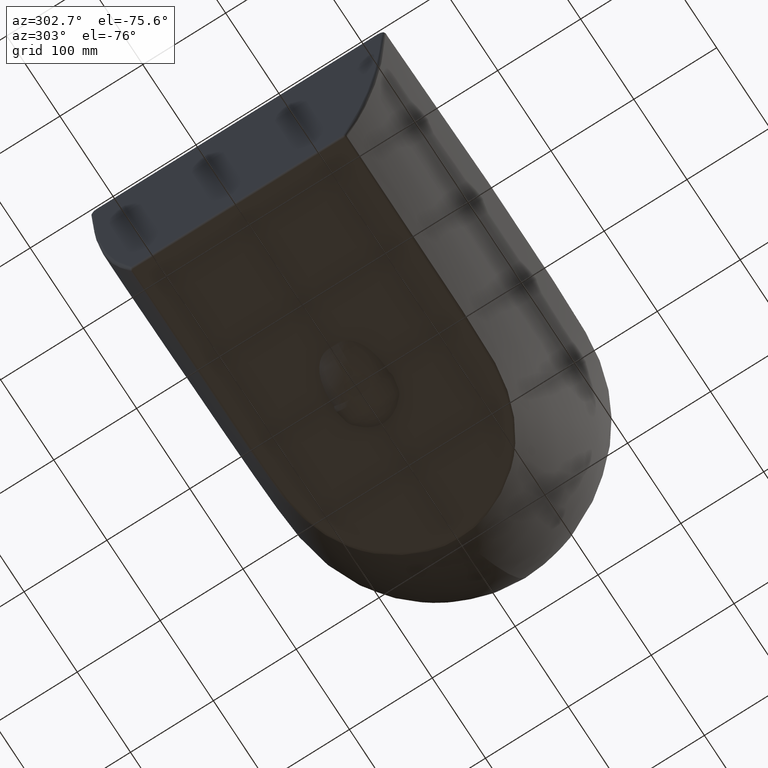
[diagram: clean part render]
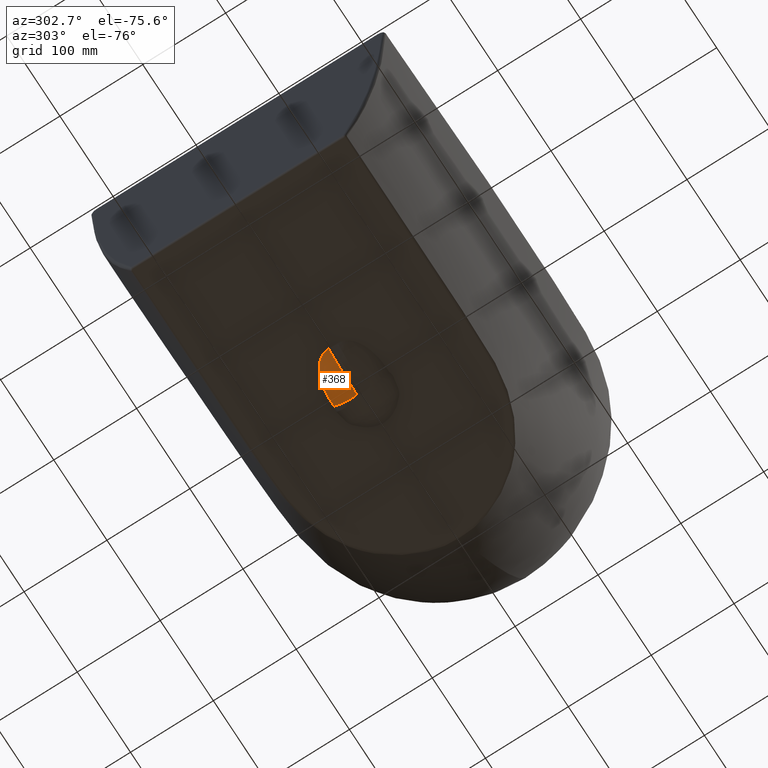
[diagram: same view with one face highlighted and labeled with its STEP entity id]
A machine part, auxiliary view. The second image highlights one B-rep face of the part: STEP entity #368.
In plain terms, the highlighted face is a freeform B-spline surface patch.
Its self-contained STEP definition (entity closure, byte-faithful):
#87=(
BOUNDED_SURFACE()
B_SPLINE_SURFACE(3,2,((#32137,#32138,#32139),(#32140,#32141,#32142),(#32143,
#32144,#32145),(#32146,#32147,#32148),(#32149,#32150,#32151),(#32152,#32153,
#32154),(#32155,#32156,#32157),(#32158,#32159,#32160),(#32161,#32162,#32163),
(#32164,#32165,#32166),(#32167,#32168,#32169),(#32170,#32171,#32172),(#32173,
#32174,#32175),(#32176,#32177,#32178),(#32179,#32180,#32181),(#32182,#32183,
#32184),(#32185,#32186,#32187),(#32188,#32189,#32190),(#32191,#32192,#32193),
(#32194,#32195,#32196),(#32197,#32198,#32199),(#32200,#32201,#32202),(#32203,
#32204,#32205),(#32206,#32207,#32208),(#32209,#32210,#32211),(#32212,#32213,
#32214),(#32215,#32216,#32217),(#32218,#32219,#32220),(#32221,#32222,#32223),
(#32224,#32225,#32226),(#32227,#32228,#32229),(#32230,#32231,#32232),(#32233,
#32234,#32235),(#32236,#32237,#32238),(#32239,#32240,#32241),(#32242,#32243,
#32244),(#32245,#32246,#32247),(#32248,#32249,#32250),(#32251,#32252,#32253),
(#32254,#32255,#32256),(#32257,#32258,#32259),(#32260,#32261,#32262),(#32263,
#32264,#32265),(#32266,#32267,#32268),(#32269,#32270,#32271),(#32272,#32273,
#32274),(#32275,#32276,#32277),(#32278,#32279,#32280),(#32281,#32282,#32283),
(#32284,#32285,#32286),(#32287,#32288,#32289),(#32290,#32291,#32292),(#32293,
#32294,#32295),(#32296,#32297,#32298),(#32299,#32300,#32301),(#32302,#32303,
#32304),(#32305,#32306,#32307),(#32308,#32309,#32310)),.UNSPECIFIED.,.F.,
 .F.,.F.)
B_SPLINE_SURFACE_WITH_KNOTS((4,2,2,2,2,2,2,2,2,2,2,2,2,2,2,2,2,2,2,2,2,
2,2,2,2,2,2,2,4),(3,3),(0.,0.5,0.53125,0.5322265625,0.53271484375,0.533203125,
0.53515625,0.5390625,0.546875,0.5625,0.59375,0.625,0.65625,0.6875,0.75,
0.78125,0.796875,0.80078125,0.8046875,0.8125,0.875,0.890625,0.8984375,0.90234375,
0.90625,0.9375,0.953125,0.96875,1.),(0.,1.),.UNSPECIFIED.)
GEOMETRIC_REPRESENTATION_ITEM()
RATIONAL_B_SPLINE_SURFACE(((1.,0.717992824799874,1.),(1.,0.717992824799874,
1.),(1.,0.717992824799874,1.),(1.,0.717992824799874,1.),(1.,0.717992824799874,
1.),(1.,0.717992824799874,1.),(1.,0.717992824799874,1.),(1.,0.717992824799874,
1.),(1.,0.717986281339662,1.),(1.,0.718004024206993,1.),(1.,0.718012906493623,
1.),(1.,0.718057372232096,1.),(1.,0.718093118615959,1.),(1.,0.718200880324152,
1.),(1.,0.718273418450484,1.),(1.,0.718493125116669,1.),(1.,0.718642391234111,
1.),(1.,0.719098422530509,1.),(1.,0.719413561836382,1.),(1.,0.720387187444831,
1.),(1.,0.721080363928349,1.),(1.,0.722405506893624,1.),(1.,0.723036025632625,
1.),(1.,0.724108347852518,1.),(1.,0.72455067370646,1.),(1.,0.725234341054721,
1.),(1.,0.725482450007696,1.),(1.,0.72604482142772,1.),(1.,0.726192306424054,
1.),(1.,0.726317784216579,1.),(1.,0.726340295856005,1.),(1.,0.726356905584919,
1.),(1.,0.726359508088263,1.),(1.,0.726359893672107,1.),(1.,0.726359826577714,
1.),(1.,0.72635942083899,1.),(1.,0.726358857371447,1.),(1.,0.726356558897699,
1.),(1.,0.726354034198211,1.),(1.,0.726322739897675,1.),(1.,0.726234655750901,
1.),(1.,0.726078629634851,1.),(1.,0.72604504524834,1.),(1.,0.72599139007109,
1.),(1.,0.725972957657332,1.),(1.,0.725944516455854,1.),(1.,0.725940366125016,
1.),(1.,0.725929382979558,1.),(1.,0.725923643400351,1.),(1.,0.7258694647228,
1.),(1.,0.725805279001448,1.),(1.,0.725640804870556,1.),(1.,0.72557341492404,
1.),(1.,0.725414398010396,1.),(1.,0.725322884593481,1.),(1.,0.725063042543528,
1.),(1.,0.724924073463638,1.),(1.,0.724851234726837,1.)))
REPRESENTATION_ITEM('')
SURFACE()
);
#239=FACE_OUTER_BOUND('',#596,.T.);
#254=(
BOUNDED_CURVE()
B_SPLINE_CURVE(3,(#3541,#3542,#3543,#3544,#3545,#3546,#3547,#3548,#3549,
#3550,#3551,#3552,#3553,#3554,#3555,#3556,#3557,#3558,#3559,#3560,#3561,
#3562,#3563,#3564,#3565,#3566,#3567,#3568,#3569,#3570,#3571,#3572),
 .UNSPECIFIED.,.F.,.F.)
B_SPLINE_CURVE_WITH_KNOTS((4,2,2,2,2,2,2,2,2,2,2,2,2,2,2,4),(0.,0.0670386830181782,
0.127866577614796,0.188694472211413,0.310350261404648,0.325557235053802,
0.340764208702956,0.371178156001265,0.432006050597882,0.675317628984352,
0.70573157628266,0.720938549931815,0.736145523580969,0.796973418177586,
0.918629207370821,1.),.UNSPECIFIED.)
CURVE()
GEOMETRIC_REPRESENTATION_ITEM()
RATIONAL_B_SPLINE_CURVE((0.999999999468089,0.999999999468223,0.999999999468388,
0.99999999946874,0.999999999468917,0.999999999469224,0.999999999469355,
0.999999999469673,0.999999999469797,0.999999999469902,0.999999999469913,
0.999999999469934,0.999999999469942,0.999999999469997,0.999999999470033,
0.999999999470137,0.999999999470202,0.999999999470503,0.999999999470674,
0.999999999470734,0.999999999470739,0.999999999470744,0.999999999470745,
0.999999999470745,0.999999999470746,0.999999999470745,0.99999999947074,
0.999999999470708,0.999999999470664,0.999999999470529,0.999999999470461,
0.999999999470368))
REPRESENTATION_ITEM('')
);
#368=ADVANCED_FACE('',(#239),#87,.F.);
#596=EDGE_LOOP('',(#1283,#1284,#1285));
#1283=ORIENTED_EDGE('',*,*,#1633,.T.);
#1284=ORIENTED_EDGE('',*,*,#1949,.F.);
#1285=ORIENTED_EDGE('',*,*,#1648,.T.);
#1374=VERTEX_POINT('',#3394);
#1375=VERTEX_POINT('',#3395);
#1389=VERTEX_POINT('',#3573);
#1633=EDGE_CURVE('',#1374,#1375,#1984,.T.);
#1648=EDGE_CURVE('',#1389,#1374,#254,.T.);
#1949=EDGE_CURVE('',#1389,#1375,#2254,.T.);
#1984=B_SPLINE_CURVE_WITH_KNOTS('',3,(#3378,#3379,#3380,#3381,#3382,#3383,
#3384,#3385,#3386,#3387,#3388,#3389,#3390,#3391,#3392,#3393),
 .UNSPECIFIED.,.F.,.F.,(4,2,2,2,2,2,2,4),(0.,0.125,0.250000000000001,0.375000000000001,
0.500000000000001,0.750000000000001,0.875,1.),.UNSPECIFIED.);
#2254=B_SPLINE_CURVE_WITH_KNOTS('',3,(#32127,#32128,#32129,#32130,#32131,
#32132,#32133,#32134,#32135,#32136),.UNSPECIFIED.,.F.,.F.,(4,2,2,2,4),(0.,
0.25,0.5,0.75,1.),.UNSPECIFIED.);
#3378=CARTESIAN_POINT('',(157.716867588258,5.39598320426986,-320.999999999502));
#3379=CARTESIAN_POINT('',(157.716886738041,8.21654763138449,-320.999999999502));
#3380=CARTESIAN_POINT('',(158.392584472243,10.9776232468233,-320.999999999502));
#3381=CARTESIAN_POINT('',(160.80015820379,16.0093760957586,-320.999999999502));
#3382=CARTESIAN_POINT('',(162.526728280969,18.2788521915876,-320.999999999502));
#3383=CARTESIAN_POINT('',(166.489562942209,22.1585507852972,-320.999999999502));
#3384=CARTESIAN_POINT('',(168.775354933538,23.8228072363935,-320.999999999502));
#3385=CARTESIAN_POINT('',(173.561474486347,26.6330229768626,-320.999999999502));
#3386=CARTESIAN_POINT('',(176.069109395806,27.79718644753,-320.999999999502));
#3387=CARTESIAN_POINT('',(183.869640304823,30.7058462183236,-320.999999999502));
#3388=CARTESIAN_POINT('',(189.337856541923,31.8491013650594,-320.999999999502));
#3389=CARTESIAN_POINT('',(197.50730408672,32.9033913932279,-320.999999999502));
#3390=CARTESIAN_POINT('',(200.240264590799,33.1702607376423,-320.999999999502));
#3391=CARTESIAN_POINT('',(205.739275100687,33.4188115452849,-320.999999999502));
#3392=CARTESIAN_POINT('',(208.507021581188,33.3858716332448,-320.999999999502));
#3393=CARTESIAN_POINT('',(211.287449265106,33.2436364660505,-320.999999999502));
#3394=CARTESIAN_POINT('',(157.716867588258,5.39598320426986,-320.999999999502));
#3395=CARTESIAN_POINT('',(211.287449265102,33.2436364660494,-320.999999999502));
#3541=CARTESIAN_POINT('',(211.387444988412,5.62179921943198,-332.071291100723));
#3542=CARTESIAN_POINT('',(210.226332139825,5.60579999595525,-332.139991902441));
#3543=CARTESIAN_POINT('',(208.9623577817,5.59032361938776,-332.197231554431));
#3544=CARTESIAN_POINT('',(206.365458673227,5.56285087552857,-332.254668002766));
#3545=CARTESIAN_POINT('',(205.066553358526,5.5505718944621,-332.256526780343));
#3546=CARTESIAN_POINT('',(202.556329342244,5.52764370146155,-332.205320316461));
#3547=CARTESIAN_POINT('',(201.349910016498,5.51697766194853,-332.153961492974));
#3548=CARTESIAN_POINT('',(197.955314403665,5.48684399408954,-331.956021333255));
#3549=CARTESIAN_POINT('',(195.970995140549,5.46915902774054,-331.77079659453));
#3550=CARTESIAN_POINT('',(193.892833110415,5.45067925272382,-331.547075710629));
#3551=CARTESIAN_POINT('',(193.664122054246,5.44864661729706,-331.52193755678));
#3552=CARTESIAN_POINT('',(193.210686323572,5.44461981509632,-331.471162883913));
#3553=CARTESIAN_POINT('',(192.997338693882,5.4426206563612,-331.447008380687));
#3554=CARTESIAN_POINT('',(192.192088673385,5.43671601985418,-331.352891587014));
#3555=CARTESIAN_POINT('',(191.654362646207,5.43291555626316,-331.286082945105));
#3556=CARTESIAN_POINT('',(190.038250403491,5.42192811725236,-331.073135934081));
#3557=CARTESIAN_POINT('',(188.956930927579,5.41515484384963,-330.914489727551));
#3558=CARTESIAN_POINT('',(183.527312973375,5.38414213586876,-330.032715915432));
#3559=CARTESIAN_POINT('',(179.081467447329,5.36838020269204,-329.038954203788));
#3560=CARTESIAN_POINT('',(174.042321058148,5.36292633247381,-327.523572677046));
#3561=CARTESIAN_POINT('',(173.482784536695,5.36249111128559,-327.349947698795));
#3562=CARTESIAN_POINT('',(172.64413969387,5.36209671808076,-327.081495353134));
#3563=CARTESIAN_POINT('',(172.341850755958,5.36200989889276,-326.98308762586));
#3564=CARTESIAN_POINT('',(171.842899353403,5.36191610676461,-326.818549180319));
#3565=CARTESIAN_POINT('',(171.59292284873,5.36190108887782,-326.735202427276));
#3566=CARTESIAN_POINT('',(170.340447792677,5.36198839234609,-326.312900404097));
#3567=CARTESIAN_POINT('',(169.330186910023,5.36257737064589,-325.957285020616));
#3568=CARTESIAN_POINT('',(166.270807309433,5.36602893485616,-324.829168884881));
#3569=CARTESIAN_POINT('',(164.193325827764,5.37056601693017,-323.996329902321));
#3570=CARTESIAN_POINT('',(160.642026558991,5.38260168005564,-322.421471733048));
#3571=CARTESIAN_POINT('',(159.19584018374,5.38857941998444,-321.744740035886));
#3572=CARTESIAN_POINT('',(157.722284311001,5.39595613531398,-321.002727833772));
#3573=CARTESIAN_POINT('',(211.387401029947,5.62159702002188,-332.070478354725));
#32127=CARTESIAN_POINT('',(211.393107081945,5.62080579905627,-332.070955955439));
#32128=CARTESIAN_POINT('',(211.747319273852,8.16260551580823,-332.049959422558));
#32129=CARTESIAN_POINT('',(211.694548780299,10.7296331523331,-331.806559888758));
#32130=CARTESIAN_POINT('',(211.712815194022,15.7169447079392,-330.839286377687));
#32131=CARTESIAN_POINT('',(211.728165771471,18.1378734792167,-330.124961269563));
#32132=CARTESIAN_POINT('',(211.719770178914,22.836833152534,-328.242929517714));
#32133=CARTESIAN_POINT('',(211.681132669276,25.1293928927526,-327.062468734362));
#32134=CARTESIAN_POINT('',(211.527391098473,29.3963430173676,-324.324528674803));
#32135=CARTESIAN_POINT('',(211.416265934913,31.391247477773,-322.762222996535));
#32136=CARTESIAN_POINT('',(211.287449265105,33.2436364660427,-320.99999999951));
#32137=CARTESIAN_POINT('',(101.164478229818,9.39309402404312,-207.749532766625));
#32138=CARTESIAN_POINT('',(101.642943758807,48.1302013477601,-209.454777339635));
#32139=CARTESIAN_POINT('',(138.975548774854,49.3321127975952,-199.036894459322));
#32140=CARTESIAN_POINT('',(107.220425696198,8.36817520011596,-229.332846351006));
#32141=CARTESIAN_POINT('',(107.698891225252,47.1052825238433,-231.038090923764));
#32142=CARTESIAN_POINT('',(145.031496237943,48.3071939746384,-220.62020803157));
#32143=CARTESIAN_POINT('',(113.276373161285,7.34325637700748,-250.916159930778));
#32144=CARTESIAN_POINT('',(113.75483868877,46.0803637017366,-252.62140450457));
#32145=CARTESIAN_POINT('',(151.087443710284,47.282275149959,-242.203521639781));
#32146=CARTESIAN_POINT('',(119.71081734446,6.25428012717291,-273.848430614699));
#32147=CARTESIAN_POINT('',(120.189282873542,44.9913874508267,-275.553675187661));
#32148=CARTESIAN_POINT('',(157.521887889248,46.1932989007626,-265.135792306377));
#32149=CARTESIAN_POINT('',(120.089314061111,6.19022270070376,-275.197387713734));
#32150=CARTESIAN_POINT('',(120.567779590108,44.92733002445,-276.902632286736));
#32151=CARTESIAN_POINT('',(157.900384606264,46.1292414742283,-266.484749406732));
#32152=CARTESIAN_POINT('',(120.479638800069,6.12416347965596,-276.588499721794));
#32153=CARTESIAN_POINT('',(120.958104329057,44.8612708033721,-278.293744294805));
#32154=CARTESIAN_POINT('',(158.290709345102,46.0631822532089,-267.875861414482));
#32155=CARTESIAN_POINT('',(120.491466822462,6.12216168507699,-276.63065463113));
#32156=CARTESIAN_POINT('',(120.969932351451,44.8592690087931,-278.335899204141));
#32157=CARTESIAN_POINT('',(158.302537367499,46.0611804586315,-267.918016323832));
#32158=CARTESIAN_POINT('',(120.509208856059,6.11915899321437,-276.693886995161));
#32159=CARTESIAN_POINT('',(120.987674385047,44.8562663169319,-278.399131568171));
#32160=CARTESIAN_POINT('',(158.320279401095,46.0581777667653,-267.981248687856));
#32161=CARTESIAN_POINT('',(120.510668546363,6.11815800524072,-276.699110138805));
#32162=CARTESIAN_POINT('',(120.988574705436,44.8559714098349,-278.405059614487));
#32163=CARTESIAN_POINT('',(158.326190754662,46.0571767787928,-268.002326981883));
#32164=CARTESIAN_POINT('',(120.534572218021,6.11615641942408,-276.784254550565));
#32165=CARTESIAN_POINT('',(121.013994776889,44.852055318338,-278.488291368087));
#32166=CARTESIAN_POINT('',(158.33802489508,46.0551751929763,-268.044479958968));
#32167=CARTESIAN_POINT('',(120.546570467383,6.1151562231989,-276.826855112295));
#32168=CARTESIAN_POINT('',(121.026751017464,44.8500967515032,-278.529932672309));
#32169=CARTESIAN_POINT('',(158.343959451939,46.0541749967514,-268.065550924706));
#32170=CARTESIAN_POINT('',(120.606795292027,6.11015823601589,-277.040000108131));
#32171=CARTESIAN_POINT('',(121.090762319386,44.8403016832031,-278.738258936729));
#32172=CARTESIAN_POINT('',(158.373719977859,46.0491770095664,-268.170878041972));
#32173=CARTESIAN_POINT('',(120.655722557615,6.10616942659655,-277.210971128773));
#32174=CARTESIAN_POINT('',(121.142717027521,44.8324570272698,-278.905333963255));
#32175=CARTESIAN_POINT('',(158.397809163743,46.0451882001506,-268.255051061754));
#32176=CARTESIAN_POINT('',(120.804805590131,6.09423214953317,-277.725264316746));
#32177=CARTESIAN_POINT('',(121.300861243286,44.8088996370107,-279.407770098149));
#32178=CARTESIAN_POINT('',(158.470931037936,46.0332509230815,-268.507300302479));
#32179=CARTESIAN_POINT('',(120.907262046984,6.08631282953712,-278.069967030266));
#32180=CARTESIAN_POINT('',(121.409344939512,44.7931611488786,-279.744391463607));
#32181=CARTESIAN_POINT('',(158.5208179396,46.0253316030915,-268.67510673728));
#32182=CARTESIAN_POINT('',(121.224326604524,6.06267486914004,-279.109703911302));
#32183=CARTESIAN_POINT('',(121.744380053963,44.745855822053,-280.759182160569));
#32184=CARTESIAN_POINT('',(158.673995401587,46.0016936426877,-269.177415344939));
#32185=CARTESIAN_POINT('',(121.448621748855,6.04707616891964,-279.810376834888));
#32186=CARTESIAN_POINT('',(121.980566097252,44.7141892873767,-281.442482656217));
#32187=CARTESIAN_POINT('',(158.780800979254,45.986094942493,-269.51080737023));
#32188=CARTESIAN_POINT('',(122.164503970176,6.00078920338212,-281.935502628552));
#32189=CARTESIAN_POINT('',(122.731424301535,44.6188793618254,-283.512481836379));
#32190=CARTESIAN_POINT('',(159.116138632613,45.9398079768918,-270.506270974233));
#32191=CARTESIAN_POINT('',(122.699019836941,5.97060907581339,-283.383370180509));
#32192=CARTESIAN_POINT('',(123.288569333493,44.5548726060164,-284.920348093521));
#32193=CARTESIAN_POINT('',(159.359562406013,45.9096278493524,-271.163639309962));
#32194=CARTESIAN_POINT('',(124.512034455025,5.88237176470369,-287.816759231543));
#32195=CARTESIAN_POINT('',(125.163931789482,44.3624264163628,-289.220421095135));
#32196=CARTESIAN_POINT('',(160.15732849103,45.821390538282,-273.114427454912));
#32197=CARTESIAN_POINT('',(126.018749046243,5.82646583090135,-290.915657442793));
#32198=CARTESIAN_POINT('',(126.705642650536,44.2325663850293,-292.214636451165));
#32199=CARTESIAN_POINT('',(160.783667141369,45.7654846044539,-274.390935638224));
#32200=CARTESIAN_POINT('',(129.619037317916,5.72561552639652,-296.970290902658));
#32201=CARTESIAN_POINT('',(130.342412230459,43.990945101954,-298.043235514975));
#32202=CARTESIAN_POINT('',(162.212537386632,45.6646342999482,-276.793878108861));
#32203=CARTESIAN_POINT('',(131.720612771764,5.68025770333225,-299.93335240547));
#32204=CARTESIAN_POINT('',(132.444321603785,43.8788732021367,-300.885841895743));
#32205=CARTESIAN_POINT('',(163.01854940541,45.6192764768688,-277.929366821566));
#32206=CARTESIAN_POINT('',(136.297194933706,5.59981968680199,-305.373921298801));
#32207=CARTESIAN_POINT('',(136.984508506985,43.6853833781615,-306.098969523588));
#32208=CARTESIAN_POINT('',(164.816311015464,45.5388384603697,-280.066517548593));
#32209=CARTESIAN_POINT('',(138.773682681137,5.56454971006235,-307.856576672421));
#32210=CARTESIAN_POINT('',(139.425311080889,43.6036232858013,-308.476865019007));
#32211=CARTESIAN_POINT('',(165.814691735193,45.5035684836124,-281.07402277856));
#32212=CARTESIAN_POINT('',(143.705641805428,5.50442354488872,-312.171762702475));
#32213=CARTESIAN_POINT('',(144.269758972906,43.4718132289627,-312.615230424888));
#32214=CARTESIAN_POINT('',(167.939802089359,45.4434423184429,-282.933374465584));
#32215=CARTESIAN_POINT('',(146.171111044076,5.47935734003642,-314.026626264043));
#32216=CARTESIAN_POINT('',(146.684953595901,43.420779523597,-314.398339207044));
#32217=CARTESIAN_POINT('',(169.06955224765,45.4183761135828,-283.79024001732));
#32218=CARTESIAN_POINT('',(153.348996721235,5.41694327391856,-318.870737365878));
#32219=CARTESIAN_POINT('',(153.709493233296,43.2996202976913,-319.064186707209));
#32220=CARTESIAN_POINT('',(172.574787338334,45.3559620474822,-286.155804055477));
#32221=CARTESIAN_POINT('',(157.809391595836,5.39220167394759,-321.165312233462));
#32222=CARTESIAN_POINT('',(158.074144943785,43.2594825924744,-321.292800562996));
#32223=CARTESIAN_POINT('',(175.038249550894,45.3312204475195,-287.453484369072));
#32224=CARTESIAN_POINT('',(164.193325827572,5.37056596375298,-323.996329902243));
#32225=CARTESIAN_POINT('',(164.329974109358,43.2247633310614,-324.051888339048));
#32226=CARTESIAN_POINT('',(178.849637769243,45.3095847372952,-289.143681511289));
#32227=CARTESIAN_POINT('',(166.270807309297,5.36602888168062,-324.829168884829));
#32228=CARTESIAN_POINT('',(166.367291609558,43.2178795734094,-324.866046404711));
#32229=CARTESIAN_POINT('',(180.140182360787,45.305047655234,-289.662780445198));
#32230=CARTESIAN_POINT('',(169.330186909967,5.36257731747156,-325.957285020596));
#32231=CARTESIAN_POINT('',(169.369892417615,43.2126968796515,-325.971276109272));
#32232=CARTESIAN_POINT('',(182.101180636382,45.3015960910231,-290.3858792711));
#32233=CARTESIAN_POINT('',(170.340447792647,5.36198833917195,-326.312900404087));
#32234=CARTESIAN_POINT('',(170.36181916245,43.2118366657928,-326.320142127452));
#32235=CARTESIAN_POINT('',(182.759062645561,45.301007112711,-290.617611994713));
#32236=CARTESIAN_POINT('',(171.592922848731,5.36190103570371,-326.735202427276));
#32237=CARTESIAN_POINT('',(171.592063394166,43.2117091775789,-326.734903678262));
#32238=CARTESIAN_POINT('',(183.586287072745,45.3009198092591,-290.896530562848));
#32239=CARTESIAN_POINT('',(171.84289935341,5.3619160535905,-326.818549180321));
#32240=CARTESIAN_POINT('',(171.837628506527,43.2117311879057,-326.816787493881));
#32241=CARTESIAN_POINT('',(183.751975798752,45.3009348271446,-290.951776369673));
#32242=CARTESIAN_POINT('',(172.341850755978,5.36200984571862,-326.983087625867));
#32243=CARTESIAN_POINT('',(172.327825264165,43.211867265267,-326.978485988041));
#32244=CARTESIAN_POINT('',(184.083831916636,45.3010286192687,-291.061212057225));
#32245=CARTESIAN_POINT('',(172.6441396939,5.36209666490658,-327.081495353144));
#32246=CARTESIAN_POINT('',(172.622977920221,43.2120128080636,-327.074632814394));
#32247=CARTESIAN_POINT('',(184.250059707942,45.3011154384659,-291.115268698187));
#32248=CARTESIAN_POINT('',(173.48278453675,5.36249105811124,-327.349947698812));
#32249=CARTESIAN_POINT('',(173.44381708636,43.2126467455523,-327.337651321888));
#32250=CARTESIAN_POINT('',(184.749748634833,45.3015098316491,-291.275220393678));
#32251=CARTESIAN_POINT('',(174.042321058219,5.36292627929927,-327.523572677068));
#32252=CARTESIAN_POINT('',(173.991498040018,43.213345091963,-327.507889172358));
#32253=CARTESIAN_POINT('',(185.084168111812,45.3019450528283,-291.37900136864));
#32254=CARTESIAN_POINT('',(179.08146744755,5.36838014951521,-329.03895420385));
#32255=CARTESIAN_POINT('',(178.924308039031,43.2220608025689,-328.994892363418));
#32256=CARTESIAN_POINT('',(188.105481894046,45.3073989232519,-292.287576500012));
#32257=CARTESIAN_POINT('',(183.527312973724,5.38414208268548,-330.032715915508));
#32258=CARTESIAN_POINT('',(183.279048923215,43.2470087645496,-329.978467592743));
#32259=CARTESIAN_POINT('',(190.841559318849,45.3231608562459,-292.903892456892));
#32260=CARTESIAN_POINT('',(188.956930928078,5.41515479065492,-330.914489727627));
#32261=CARTESIAN_POINT('',(188.601517831506,43.2942928776345,-330.860253652827));
#32262=CARTESIAN_POINT('',(194.266351216656,45.354173564205,-293.460081093584));
#32263=CARTESIAN_POINT('',(190.038250404019,5.42192806405519,-331.073135934156));
#32264=CARTESIAN_POINT('',(189.661898306954,43.3045706258306,-331.019570470272));
#32265=CARTESIAN_POINT('',(194.952383357086,45.360946837612,-293.560790171512));
#32266=CARTESIAN_POINT('',(191.654362646779,5.43291550306206,-331.286082945178));
#32267=CARTESIAN_POINT('',(191.247048644362,43.3211575852036,-331.234401084331));
#32268=CARTESIAN_POINT('',(195.982988457932,45.3719342766118,-293.696587840759));
#32269=CARTESIAN_POINT('',(192.192088673971,5.43671596665173,-331.352891587085));
#32270=CARTESIAN_POINT('',(191.774550266408,43.3268820437378,-331.301986482323));
#32271=CARTESIAN_POINT('',(196.326783091236,45.375734740203,-293.739308254146));
#32272=CARTESIAN_POINT('',(192.99733869449,5.44262060315667,-331.447008380756));
#32273=CARTESIAN_POINT('',(192.564572432535,43.3357556178962,-331.39747896935));
#32274=CARTESIAN_POINT('',(196.842858730792,45.3816393767092,-293.799626643815));
#32275=CARTESIAN_POINT('',(193.210686324183,5.44461976189148,-331.471162883982));
#32276=CARTESIAN_POINT('',(192.775749658534,43.3381880553418,-331.421850729165));
#32277=CARTESIAN_POINT('',(197.014942165919,45.3836385354417,-293.819161882889));
#32278=CARTESIAN_POINT('',(193.664122054865,5.44864656409141,-331.521937556848));
#32279=CARTESIAN_POINT('',(193.223445628412,43.3433615082526,-331.473200614247));
#32280=CARTESIAN_POINT('',(197.359162626833,45.3876653376455,-293.857706885168));
#32281=CARTESIAN_POINT('',(193.892833111038,5.45067919951775,-331.547075710697));
#32282=CARTESIAN_POINT('',(193.449185798146,43.3459933832061,-331.498648390767));
#32283=CARTESIAN_POINT('',(197.531309044163,45.389697973069,-293.87662455862));
#32284=CARTESIAN_POINT('',(195.970995141211,5.4691589745305,-331.770796594594));
#32285=CARTESIAN_POINT('',(195.499726033233,43.370131267546,-331.725401325199));
#32286=CARTESIAN_POINT('',(199.080976842359,45.4081777480899,-294.043451323778));
#32287=CARTESIAN_POINT('',(197.955314404371,5.48684394087479,-331.956021333313));
#32288=CARTESIAN_POINT('',(197.452565123896,43.3945212308559,-331.914599481881));
#32289=CARTESIAN_POINT('',(200.460827037962,45.4258627144186,-294.168525445091));
#32290=CARTESIAN_POINT('',(201.349910017299,5.51697760872173,-332.153961493012));
#32291=CARTESIAN_POINT('',(200.778946719515,43.4418395667931,-332.126722953195));
#32292=CARTESIAN_POINT('',(202.537386978347,45.455996382278,-294.289610443259));
#32293=CARTESIAN_POINT('',(202.556329343082,5.5276436482298,-332.20532031649));
#32294=CARTESIAN_POINT('',(201.959122389331,43.4595509767378,-332.184369558937));
#32295=CARTESIAN_POINT('',(203.230742868173,45.466662421771,-294.318507210564));
#32296=CARTESIAN_POINT('',(205.066553359443,5.55057184121868,-332.256526780349));
#32297=CARTESIAN_POINT('',(204.412637250412,43.4991109759408,-332.251957599182));
#32298=CARTESIAN_POINT('',(204.620457536227,45.4895906147817,-294.346856223568));
#32299=CARTESIAN_POINT('',(206.365458674187,5.56285082227844,-332.254668002758));
#32300=CARTESIAN_POINT('',(205.681433881161,43.520966653966,-332.260241306629));
#32301=CARTESIAN_POINT('',(205.316847972786,45.5018695958453,-294.345998040722));
#32302=CARTESIAN_POINT('',(210.071600846745,5.60205831179069,-332.172698070685));
#32303=CARTESIAN_POINT('',(209.308522300027,43.587388302484,-332.208693154465));
#32304=CARTESIAN_POINT('',(207.410479168176,45.5410770853134,-294.299692530659));
#32305=CARTESIAN_POINT('',(212.221132892291,5.63172954112318,-332.028719130986));
#32306=CARTESIAN_POINT('',(211.422222550288,43.631146653569,-332.082291781232));
#32307=CARTESIAN_POINT('',(208.812586706834,45.5703107778969,-294.211897607479));
#32308=CARTESIAN_POINT('',(214.017657425507,5.66164709262146,-331.889026534268));
#32309=CARTESIAN_POINT('',(213.199987660368,43.6691755323565,-331.952606190787));
#32310=CARTESIAN_POINT('',(210.21509447917,45.6006658661736,-294.102842623467));